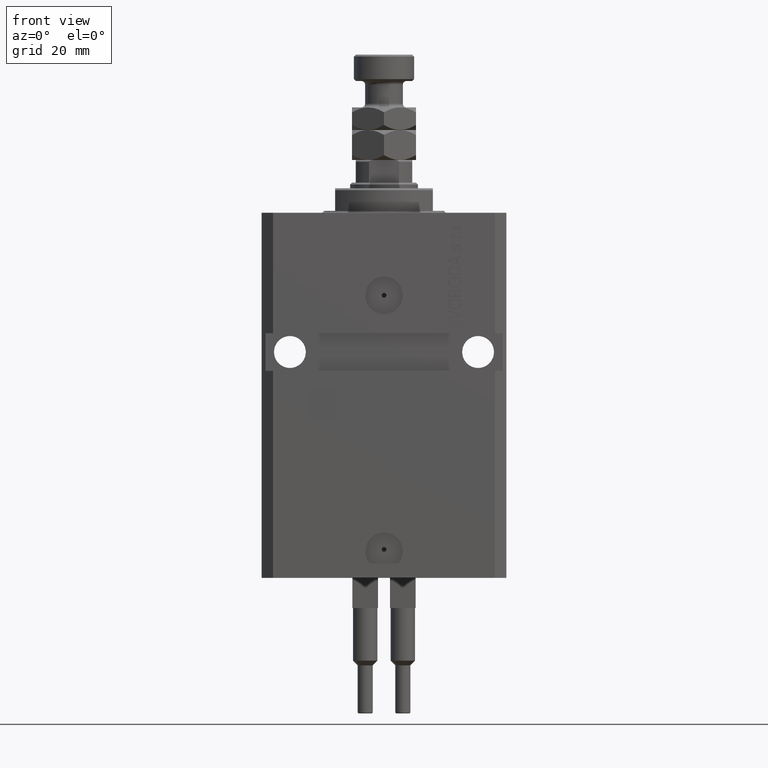
[diagram: clean part render]
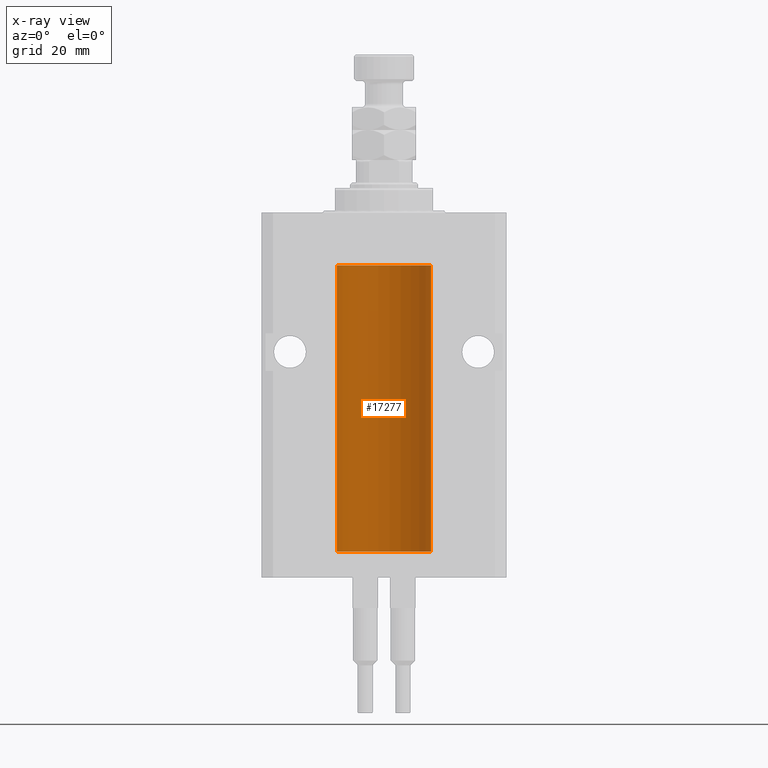
[diagram: x-ray — body ghosted, one internal face saturated and labeled with its STEP entity id]
A machine part, front view, then the same camera in x-ray: the body is ghosted and one INTERNAL B-rep face — a face not visible from any outside direction — is saturated and labeled: STEP entity #17277.
In plain terms, the highlighted cylindrical surface (partial cylindrical patch) has radius 12.5 mm, axis along (0, 0, 1).
Its self-contained STEP definition (entity closure, byte-faithful):
#493 = DIRECTION ( 'NONE',  ( 1.000000000000000000, 0.000000000000000000, 0.000000000000000000 ) ) ;
#1229 = CARTESIAN_POINT ( 'NONE',  ( -12.49625855304194211, 0.3150454781038009022, -84.45402800297485157 ) ) ;
#1234 = DIRECTION ( 'NONE',  ( -0.000000000000000000, -0.000000000000000000, 1.000000000000000000 ) ) ;
#1323 = EDGE_LOOP ( 'NONE', ( #6479, #8734, #21586, #14901, #19264, #28865, #49637, #48611 ) ) ;
#1429 = CARTESIAN_POINT ( 'NONE',  ( -12.50000000000000000, -2.089494013101375120E-17, -21.37499999999999645 ) ) ;
#1475 = CARTESIAN_POINT ( 'NONE',  ( -12.49631005746706336, 0.3253680783018467748, -85.55856740465395660 ) ) ;
#2226 = CARTESIAN_POINT ( 'NONE',  ( -12.49422197749724006, 0.3843754434364270445, -84.50047099568094211 ) ) ;
#3111 = VERTEX_POINT ( 'NONE', #1429 ) ;
#3204 = CARTESIAN_POINT ( 'NONE',  ( -12.49422197749724006, 0.3843754434364375916, -21.50047099568095277 ) ) ;
#3290 = EDGE_CURVE ( 'NONE', #46411, #34625, #17720, .T. ) ;
#3930 = CARTESIAN_POINT ( 'NONE',  ( -12.50000000000000000, -2.089494013101375120E-17, -21.37499999999999645 ) ) ;
#4539 = CARTESIAN_POINT ( 'NONE',  ( -12.50000000000017941, 3.883381646606358354E-13, -22.62500000000358824 ) ) ;
#4775 = CIRCLE ( 'NONE', #13594, 12.50000000000000000 ) ;
#6200 = DIRECTION ( 'NONE',  ( -0.000000000000000000, -0.000000000000000000, 1.000000000000000000 ) ) ;
#6479 = ORIENTED_EDGE ( 'NONE', *, *, #19045, .F. ) ;
#6899 = AXIS2_PLACEMENT_3D ( 'NONE', #27047, #15277, #16001 ) ;
#7322 = EDGE_CURVE ( 'NONE', #3111, #15262, #24433, .T. ) ;
#7359 = VECTOR ( 'NONE', #31228, 1000.000000000000000 ) ;
#8734 = ORIENTED_EDGE ( 'NONE', *, *, #29107, .F. ) ;
#9015 = CARTESIAN_POINT ( 'NONE',  ( -12.48436376893640265, 0.6250290278979885317, -85.08132082824472775 ) ) ;
#9233 = VERTEX_POINT ( 'NONE', #21615 ) ;
#9260 = CARTESIAN_POINT ( 'NONE',  ( -12.50000000000000178, 0.08260426088728120564, -84.37500000000000000 ) ) ;
#10489 = CARTESIAN_POINT ( 'NONE',  ( -12.48810268015257563, 0.5573155909661349217, -21.67347410093867666 ) ) ;
#11508 = CARTESIAN_POINT ( 'NONE',  ( 0.000000000000000000, 0.000000000000000000, -13.99999999999999822 ) ) ;
#12454 = DIRECTION ( 'NONE',  ( -0.000000000000000000, -0.000000000000000000, 1.000000000000000000 ) ) ;
#12776 = FACE_OUTER_BOUND ( 'NONE', #1323, .T. ) ;
#13028 = CARTESIAN_POINT ( 'NONE',  ( -12.49999999999999467, 0.1631761135151226227, -85.62499999999985789 ) ) ;
#13075 = B_SPLINE_CURVE_WITH_KNOTS ( 'NONE', 3,
 ( #3930, #49619, #42074, #37558, #3204, #10489, #19215, #18494, #33804, #30037, #34521, #14250, #29535, #25776 ),
 .UNSPECIFIED., .F., .F.,
 ( 4, 2, 2, 2, 2, 2, 4 ),
 ( 2.030551168097110502E-20, 0.0002442924852390969078, 0.0004885849704781938157, 0.0009771699409563880650, 0.001221462426195485135, 0.001465754911434582423, 0.001954339881912776130 ),
 .UNSPECIFIED. ) ;
#13594 = AXIS2_PLACEMENT_3D ( 'NONE', #11508, #15014, #49409 ) ;
#14250 = CARTESIAN_POINT ( 'NONE',  ( -12.49631005746706336, 0.3253680783018528255, -22.55856740465392463 ) ) ;
#14901 = ORIENTED_EDGE ( 'NONE', *, *, #47425, .T. ) ;
#15014 = DIRECTION ( 'NONE',  ( 0.000000000000000000, 0.000000000000000000, 1.000000000000000000 ) ) ;
#15081 = CARTESIAN_POINT ( 'NONE',  ( -12.50000000000017941, 3.883381774819353300E-13, -85.62500000000359535 ) ) ;
#15262 = VERTEX_POINT ( 'NONE', #26389 ) ;
#15277 = DIRECTION ( 'NONE',  ( 0.000000000000000000, 0.000000000000000000, 1.000000000000000000 ) ) ;
#15551 = CYLINDRICAL_SURFACE ( 'NONE', #32226, 12.50000000000000000 ) ;
#15956 = LINE ( 'NONE', #42819, #30683 ) ;
#16001 = DIRECTION ( 'NONE',  ( 1.000000000000000000, 0.000000000000000000, 0.000000000000000000 ) ) ;
#16148 = VECTOR ( 'NONE', #6200, 1000.000000000000000 ) ;
#16517 = CARTESIAN_POINT ( 'NONE',  ( -12.48810268015257385, 0.5573155909661255958, -84.67347410093866245 ) ) ;
#16762 = EDGE_CURVE ( 'NONE', #46411, #45350, #39285, .T. ) ;
#17277 = ADVANCED_FACE ( 'NONE', ( #12776 ), #15551, .F. ) ;
#17517 = CARTESIAN_POINT ( 'NONE',  ( -12.48520330846398174, 0.6088355886774080572, -85.16325431852563099 ) ) ;
#17720 = LINE ( 'NONE', #40566, #16148 ) ;
#18494 = CARTESIAN_POINT ( 'NONE',  ( -12.48436376893640443, 0.6250290278979917513, -22.08132082824473486 ) ) ;
#19045 = EDGE_CURVE ( 'NONE', #45100, #45350, #15956, .T. ) ;
#19215 = CARTESIAN_POINT ( 'NONE',  ( -12.48436813453758454, 0.6249418250771192618, -21.83668996798922635 ) ) ;
#19264 = ORIENTED_EDGE ( 'NONE', *, *, #7322, .F. ) ;
#21277 = CARTESIAN_POINT ( 'NONE',  ( -12.50000000000000000, -1.400179267190960761E-14, -84.37500000000000000 ) ) ;
#21586 = ORIENTED_EDGE ( 'NONE', *, *, #40681, .T. ) ;
#21615 = CARTESIAN_POINT ( 'NONE',  ( 12.50000000000000000, 0.000000000000000000, -90.09999999999999432 ) ) ;
#23675 = CARTESIAN_POINT ( 'NONE',  ( -12.50000000000000000, -1.400179267190960761E-14, -84.37500000000000000 ) ) ;
#23691 = CARTESIAN_POINT ( 'NONE',  ( -12.50000000000000000, 1.530808498934191521E-15, -90.09999999999999432 ) ) ;
#24292 = CARTESIAN_POINT ( 'NONE',  ( -12.48809959379011048, 0.5462151254764935349, -85.31461370481615347 ) ) ;
#24433 = LINE ( 'NONE', #23691, #7359 ) ;
#25776 = CARTESIAN_POINT ( 'NONE',  ( -12.50000000000017941, 3.883381646606358354E-13, -22.62500000000358824 ) ) ;
#26381 = CARTESIAN_POINT ( 'NONE',  ( 12.50000000000000000, 0.000000000000000000, -13.99999999999999822 ) ) ;
#26389 = CARTESIAN_POINT ( 'NONE',  ( -12.50000000000000000, 1.530808498934191521E-15, -13.99999999999999822 ) ) ;
#27047 = CARTESIAN_POINT ( 'NONE',  ( 0.000000000000000000, 0.000000000000000000, -90.09999999999999432 ) ) ;
#28308 = CARTESIAN_POINT ( 'NONE',  ( -12.50000000000017941, 3.883381774819353300E-13, -85.62500000000359535 ) ) ;
#28488 = CIRCLE ( 'NONE', #6899, 12.50000000000000000 ) ;
#28865 = ORIENTED_EDGE ( 'NONE', *, *, #38585, .T. ) ;
#29107 = EDGE_CURVE ( 'NONE', #9233, #45100, #28488, .T. ) ;
#29535 = CARTESIAN_POINT ( 'NONE',  ( -12.49999999999999289, 0.1631761135151241215, -22.62499999999984013 ) ) ;
#30037 = CARTESIAN_POINT ( 'NONE',  ( -12.48809959379011403, 0.5462151254764975317, -22.31461370481611795 ) ) ;
#30683 = VECTOR ( 'NONE', #12454, 1000.000000000000000 ) ;
#31228 = DIRECTION ( 'NONE',  ( -0.000000000000000000, -0.000000000000000000, 1.000000000000000000 ) ) ;
#32226 = AXIS2_PLACEMENT_3D ( 'NONE', #35591, #1234, #493 ) ;
#33804 = CARTESIAN_POINT ( 'NONE',  ( -12.48520330846397819, 0.6088355886774127201, -22.16325431852561323 ) ) ;
#34521 = CARTESIAN_POINT ( 'NONE',  ( -12.49011732893843529, 0.5003763274120274218, -22.38348111289287701 ) ) ;
#34605 = VERTEX_POINT ( 'NONE', #26381 ) ;
#34625 = VERTEX_POINT ( 'NONE', #4539 ) ;
#35591 = CARTESIAN_POINT ( 'NONE',  ( 0.000000000000000000, 0.000000000000000000, -90.09999999999999432 ) ) ;
#36583 = CARTESIAN_POINT ( 'NONE',  ( -12.49915784441387245, 0.1636601911727907643, -84.39126818989433332 ) ) ;
#37558 = CARTESIAN_POINT ( 'NONE',  ( -12.49625855304193678, 0.3150454781038042329, -21.45402800297484802 ) ) ;
#37785 = CARTESIAN_POINT ( 'NONE',  ( -12.50000000000000000, 1.530808498934191521E-15, -90.09999999999999432 ) ) ;
#38585 = EDGE_CURVE ( 'NONE', #3111, #34625, #13075, .T. ) ;
#39285 = B_SPLINE_CURVE_WITH_KNOTS ( 'NONE', 3,
 ( #21277, #9260, #36583, #1229, #2226, #16517, #43877, #9015, #17517, #24292, #39606, #1475, #13028, #28308 ),
 .UNSPECIFIED., .F., .F.,
 ( 4, 2, 2, 2, 2, 2, 4 ),
 ( 3.490959302723760120E-18, 0.0002442924852391118698, 0.0004885849704782202702, 0.0009771699409564077975, 0.001221462426195501832, 0.001465754911434595433, 0.001954339881912782635 ),
 .UNSPECIFIED. ) ;
#39606 = CARTESIAN_POINT ( 'NONE',  ( -12.49011732893843352, 0.5003763274120212046, -85.38348111289285214 ) ) ;
#40566 = CARTESIAN_POINT ( 'NONE',  ( -12.50000000000000000, 1.530808498934191521E-15, -90.09999999999999432 ) ) ;
#40681 = EDGE_CURVE ( 'NONE', #9233, #34605, #43579, .T. ) ;
#42074 = CARTESIAN_POINT ( 'NONE',  ( -12.49915784441386890, 0.1636601911727947889, -21.39126818989430490 ) ) ;
#42819 = CARTESIAN_POINT ( 'NONE',  ( -12.50000000000000000, 1.530808498934191521E-15, -90.09999999999999432 ) ) ;
#43579 = LINE ( 'NONE', #47347, #49541 ) ;
#43877 = CARTESIAN_POINT ( 'NONE',  ( -12.48436813453758809, 0.6249418250771145988, -84.83668996798925832 ) ) ;
#45100 = VERTEX_POINT ( 'NONE', #37785 ) ;
#45350 = VERTEX_POINT ( 'NONE', #15081 ) ;
#46411 = VERTEX_POINT ( 'NONE', #23675 ) ;
#47347 = CARTESIAN_POINT ( 'NONE',  ( 12.50000000000000000, 0.000000000000000000, -90.09999999999999432 ) ) ;
#47425 = EDGE_CURVE ( 'NONE', #34605, #15262, #4775, .T. ) ;
#47844 = DIRECTION ( 'NONE',  ( -0.000000000000000000, -0.000000000000000000, 1.000000000000000000 ) ) ;
#48611 = ORIENTED_EDGE ( 'NONE', *, *, #16762, .T. ) ;
#49409 = DIRECTION ( 'NONE',  ( 1.000000000000000000, 0.000000000000000000, 0.000000000000000000 ) ) ;
#49541 = VECTOR ( 'NONE', #47844, 1000.000000000000000 ) ;
#49619 = CARTESIAN_POINT ( 'NONE',  ( -12.50000000000000000, 0.08260426088729219685, -21.37500000000000000 ) ) ;
#49637 = ORIENTED_EDGE ( 'NONE', *, *, #3290, .F. ) ;